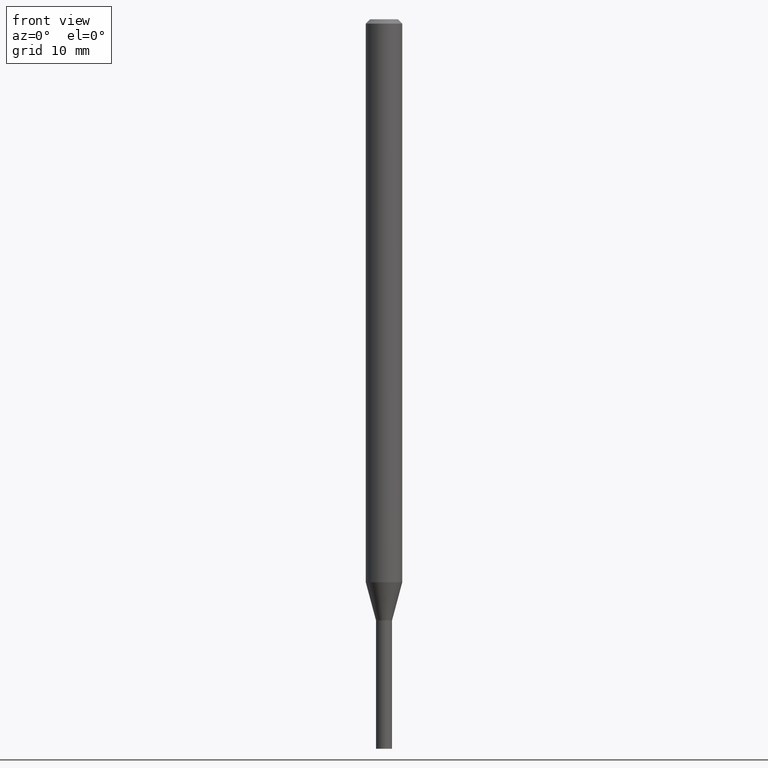
[diagram: clean part render]
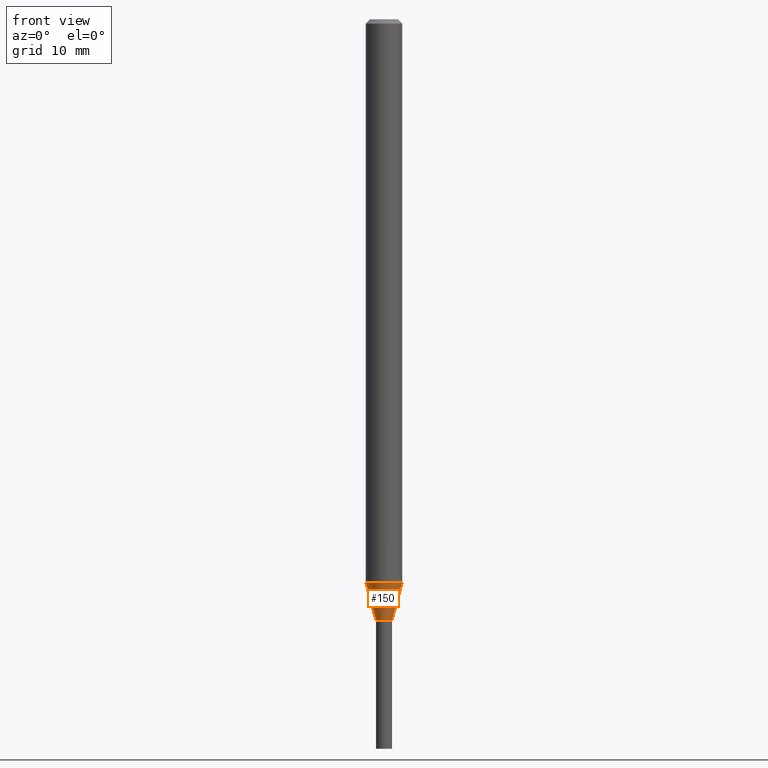
[diagram: same view with one face highlighted and labeled with its STEP entity id]
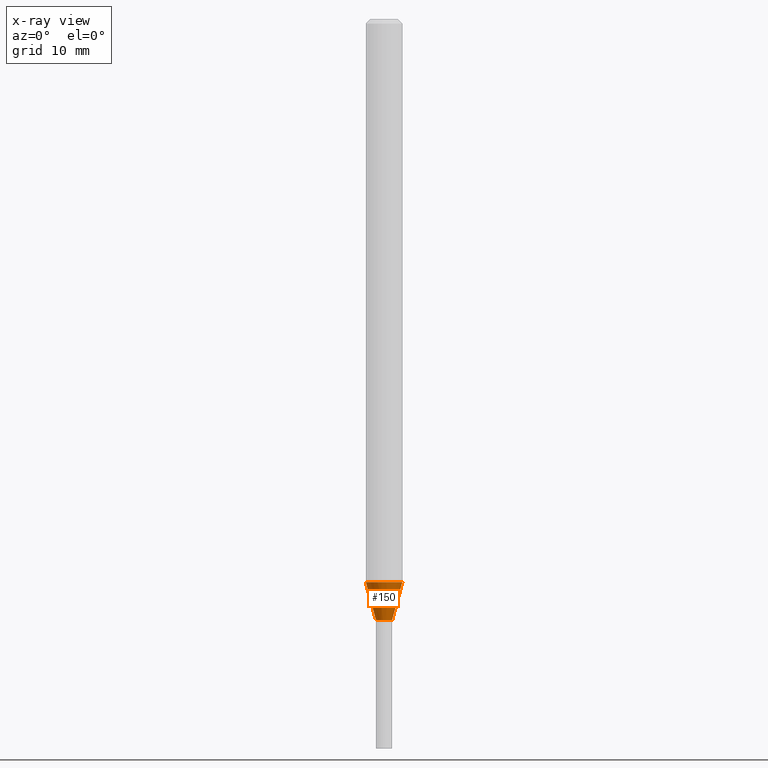
[diagram: x-ray of the same camera — body ghosted, the highlighted face saturated]
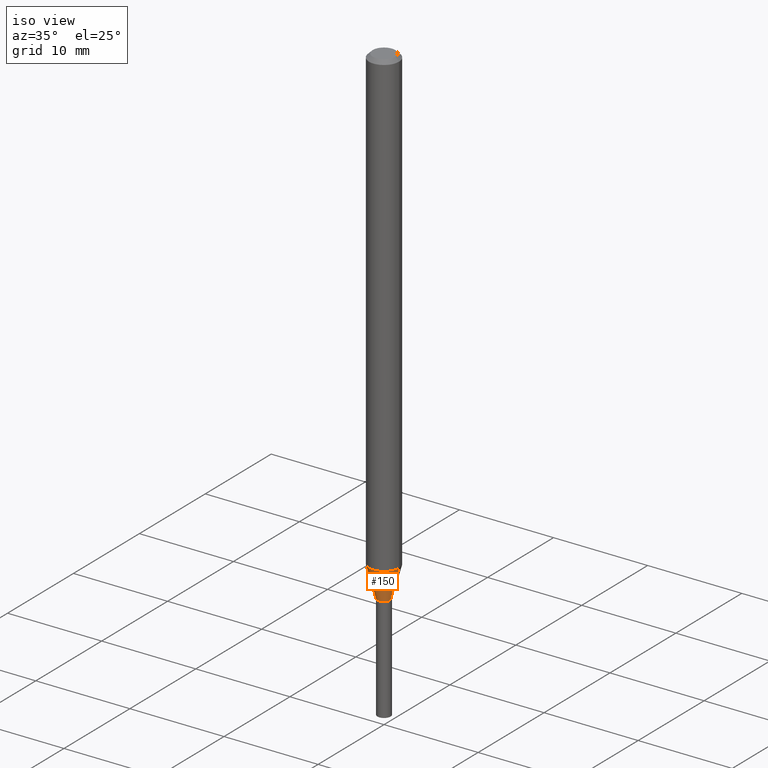
[diagram: same view with one face highlighted and labeled with its STEP entity id]
A machine part, front view. The second image highlights one B-rep face of the part: STEP entity #150.
The next image is the same camera in x-ray: the body ghosted, the highlighted face saturated — about 0% of this face is hidden behind the body in this view.
A second angle (iso view) of the same face is appended — the face is thin or edge-on in the first view.
In plain terms, the highlighted conical surface has half-angle 15 deg.
Its self-contained STEP definition (entity closure, byte-faithful):
#1 = CIRCLE ( 'NONE', #59, 0.06250000000000000000 ) ;
#6 = VERTEX_POINT ( 'NONE', #157 ) ;
#13 = EDGE_LOOP ( 'NONE', ( #294, #260, #41, #181 ) ) ;
#20 = LINE ( 'NONE', #446, #234 ) ;
#41 = ORIENTED_EDGE ( 'NONE', *, *, #330, .T. ) ;
#55 = CARTESIAN_POINT ( 'NONE',  ( 0.06250000000000000000, -7.172823224113832982E-15, -1.929378221735090548 ) ) ;
#59 = AXIS2_PLACEMENT_3D ( 'NONE', #173, #351, #131 ) ;
#61 = DIRECTION ( 'NONE',  ( -2.445468806185136597E-29, 3.491481338843145583E-15, 1.000000000000000000 ) ) ;
#115 = CONICAL_SURFACE ( 'NONE', #377, 0.02750000000000020137, 0.2617993877991505181 ) ;
#116 = CIRCLE ( 'NONE', #245, 0.02750000000000020137 ) ;
#120 = DIRECTION ( 'NONE',  ( 0.2588190451025217942, 1.565188264969618812E-15, 0.9659258262890679791 ) ) ;
#126 = CARTESIAN_POINT ( 'NONE',  ( -0.06250000000000000000, -6.292298846908378697E-15, -1.929378221735090548 ) ) ;
#127 = EDGE_CURVE ( 'NONE', #215, #364, #1, .T. ) ;
#131 = DIRECTION ( 'NONE',  ( 1.000000000000000000, -6.982962677686262766E-15, 0.000000000000000000 ) ) ;
#134 = LINE ( 'NONE', #284, #417 ) ;
#150 = ADVANCED_FACE ( 'NONE', ( #318 ), #115, .T. ) ;
#157 = CARTESIAN_POINT ( 'NONE',  ( -0.02750000000000020137, -6.644675576295614636E-15, -2.060000000000000053 ) ) ;
#173 = CARTESIAN_POINT ( 'NONE',  ( 4.718234256586113509E-29, -6.736388056758440524E-15, -1.929378221735090548 ) ) ;
#181 = ORIENTED_EDGE ( 'NONE', *, *, #127, .F. ) ;
#215 = VERTEX_POINT ( 'NONE', #126 ) ;
#234 = VECTOR ( 'NONE', #120, 39.37007874015748143 ) ;
#245 = AXIS2_PLACEMENT_3D ( 'NONE', #405, #303, #273 ) ;
#260 = ORIENTED_EDGE ( 'NONE', *, *, #419, .T. ) ;
#273 = DIRECTION ( 'NONE',  ( 1.000000000000000000, -6.982962677686264344E-15, 0.000000000000000000 ) ) ;
#284 = CARTESIAN_POINT ( 'NONE',  ( -0.02750000000000020137, -6.997052305682850574E-15, -2.060000000000000053 ) ) ;
#294 = ORIENTED_EDGE ( 'NONE', *, *, #456, .F. ) ;
#303 = DIRECTION ( 'NONE',  ( -2.445468806185136597E-29, 3.491481338843145583E-15, 1.000000000000000000 ) ) ;
#318 = FACE_OUTER_BOUND ( 'NONE', #13, .T. ) ;
#330 = EDGE_CURVE ( 'NONE', #407, #364, #20, .T. ) ;
#339 = CARTESIAN_POINT ( 'NONE',  ( 0.02750000000000020137, -7.384483031653253552E-15, -2.060000000000000053 ) ) ;
#351 = DIRECTION ( 'NONE',  ( -2.445468806185136597E-29, 3.491481338843145583E-15, 1.000000000000000000 ) ) ;
#353 = CARTESIAN_POINT ( 'NONE',  ( 5.037665740741380784E-29, -7.192451558016878693E-15, -2.060000000000000053 ) ) ;
#357 = DIRECTION ( 'NONE',  ( -0.2588190451025217942, 5.211531920934552619E-15, 0.9659258262890679791 ) ) ;
#364 = VERTEX_POINT ( 'NONE', #55 ) ;
#377 = AXIS2_PLACEMENT_3D ( 'NONE', #353, #61, #426 ) ;
#405 = CARTESIAN_POINT ( 'NONE',  ( 5.037665740741380784E-29, -7.192451558016878693E-15, -2.060000000000000053 ) ) ;
#407 = VERTEX_POINT ( 'NONE', #339 ) ;
#417 = VECTOR ( 'NONE', #357, 39.37007874015748143 ) ;
#419 = EDGE_CURVE ( 'NONE', #6, #407, #116, .T. ) ;
#426 = DIRECTION ( 'NONE',  ( 1.000000000000000000, -6.982962677686264344E-15, 0.000000000000000000 ) ) ;
#446 = CARTESIAN_POINT ( 'NONE',  ( 0.02750000000000020137, -7.384483031653253552E-15, -2.060000000000000053 ) ) ;
#456 = EDGE_CURVE ( 'NONE', #6, #215, #134, .T. ) ;